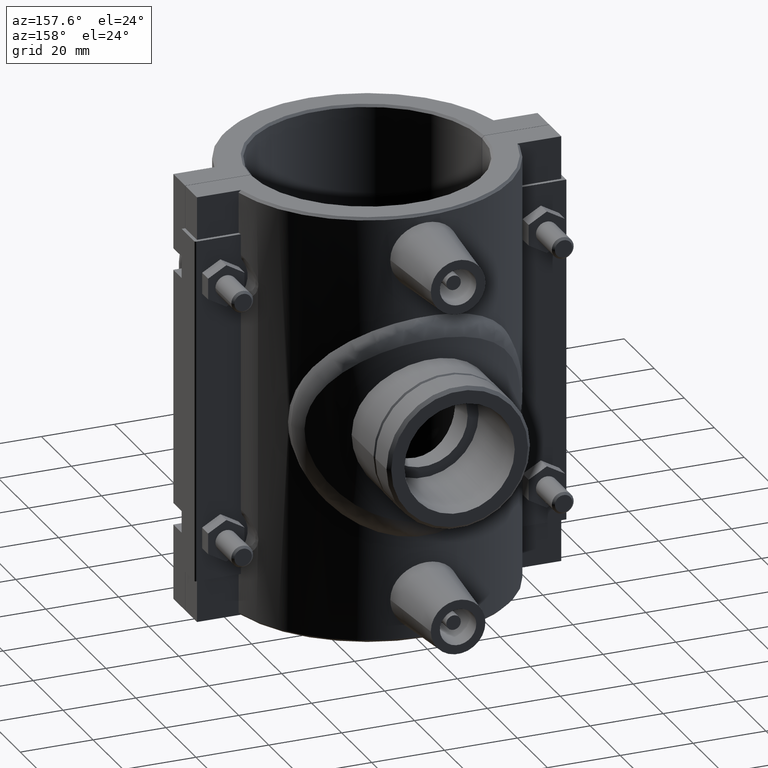
[diagram: clean part render]
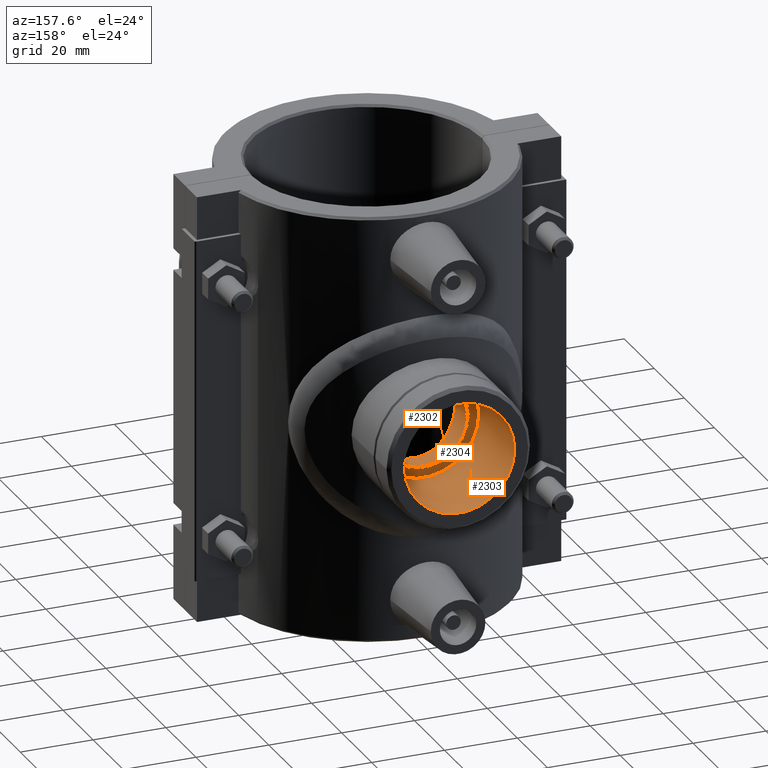
[diagram: same view with one multi-face feature highlighted, each face labeled with its STEP entity id]
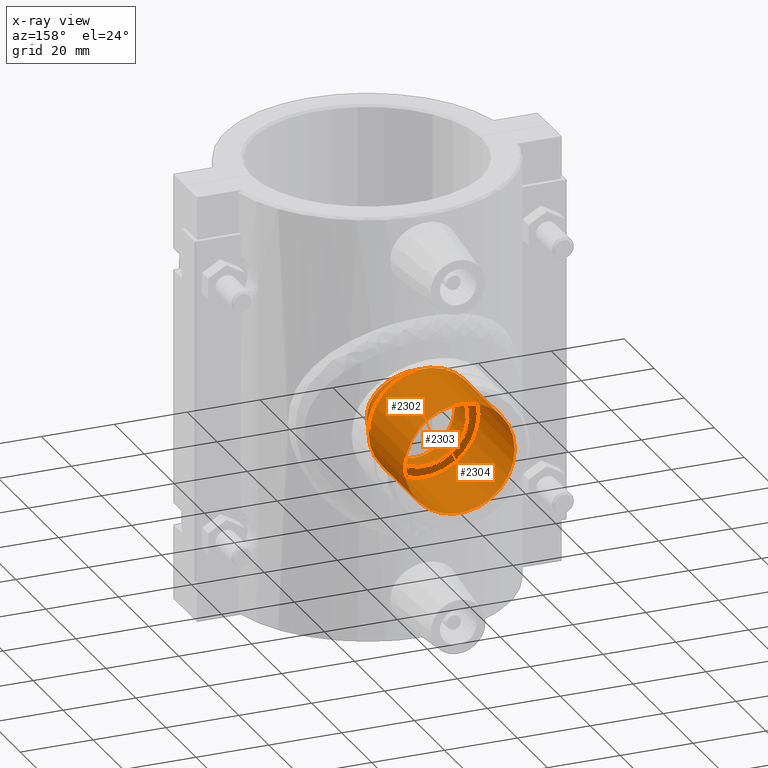
[diagram: x-ray of the same camera — body ghosted, the whole feature saturated]
A machine part, auxiliary view. The highlighted faces form ONE feature: a stepped (counterbored) hole: 2 coaxial cylindrical walls of radii 12.1164 -> 15.1455 mm joined by 1 annular planar shoulder face(s). The faces share edges in the B-rep.
The next image is the same camera in x-ray: the body ghosted and the whole hole feature saturated, so the bore chain is visible through the body.
Their STEP definitions:
[1] entity #2303 (Cylinder):
#78=CYLINDRICAL_SURFACE('',#2502,15.1455);
#128=FACE_BOUND('',#452,.T.);
#272=FACE_OUTER_BOUND('',#451,.T.);
#451=EDGE_LOOP('',(#1973));
#452=EDGE_LOOP('',(#1974));
#934=CIRCLE('',#2492,15.1455);
#939=CIRCLE('',#2503,15.1455);
#1139=VERTEX_POINT('',#4229);
#1145=VERTEX_POINT('',#4312);
#1431=EDGE_CURVE('',#1139,#1139,#934,.T.);
#1437=EDGE_CURVE('',#1145,#1145,#939,.T.);
#1973=ORIENTED_EDGE('',*,*,#1437,.T.);
#1974=ORIENTED_EDGE('',*,*,#1431,.F.);
#2303=ADVANCED_FACE('',(#272,#128),#78,.F.);
#2492=AXIS2_PLACEMENT_3D('',#4230,#3019,#3020);
#2502=AXIS2_PLACEMENT_3D('',#4311,#3039,#3040);
#2503=AXIS2_PLACEMENT_3D('',#4313,#3041,#3042);
#3019=DIRECTION('center_axis',(0.,-1.,0.));
#3020=DIRECTION('ref_axis',(-1.,0.,0.));
#3039=DIRECTION('center_axis',(0.,-1.,0.));
#3040=DIRECTION('ref_axis',(-1.,0.,0.));
#3041=DIRECTION('center_axis',(0.,-1.,0.));
#3042=DIRECTION('ref_axis',(-1.,0.,0.));
#4229=CARTESIAN_POINT('',(15.1455,61.5,-1.85478880964862E-15));
#4230=CARTESIAN_POINT('Origin',(0.,61.5,0.));
#4311=CARTESIAN_POINT('Origin',(0.,61.5,0.));
#4312=CARTESIAN_POINT('',(15.1455,37.5,-1.85478880964862E-15));
#4313=CARTESIAN_POINT('Origin',(0.,37.5,0.));
[2] entity #2302 (Cylinder):
#77=CYLINDRICAL_SURFACE('',#2500,12.1164);
#127=FACE_BOUND('',#450,.T.);
#160=B_SPLINE_CURVE_WITH_KNOTS('',3,(#4112,#4113,#4114,#4115,#4116,#4117,
#4118,#4119,#4120,#4121,#4122,#4123,#4124,#4125,#4126,#4127,#4128,#4129,
#4130,#4131,#4132,#4133,#4134,#4135,#4136,#4137,#4138,#4139,#4140,#4141,
#4142,#4143,#4144,#4145),.UNSPECIFIED.,.T.,.F.,(4,2,2,2,2,2,2,2,2,2,2,2,
2,2,2,2,4),(0.,0.461812339385587,0.923624678771175,1.38504255558034,1.84646043238952,
2.30787830919869,2.76929618600786,3.23110852539344,3.69292086477903,4.15473320416462,
4.6165455435502,5.07796342035937,5.53938129716854,6.00079917397771,6.46221705078688,
6.92402939017247,7.38584172955806),.UNSPECIFIED.);
#271=FACE_OUTER_BOUND('',#449,.T.);
#449=EDGE_LOOP('',(#1971));
#450=EDGE_LOOP('',(#1972));
#938=CIRCLE('',#2501,12.1164);
#1117=VERTEX_POINT('',#4111);
#1144=VERTEX_POINT('',#4309);
#1398=EDGE_CURVE('',#1117,#1117,#160,.T.);
#1436=EDGE_CURVE('',#1144,#1144,#938,.T.);
#1971=ORIENTED_EDGE('',*,*,#1398,.F.);
#1972=ORIENTED_EDGE('',*,*,#1436,.F.);
#2302=ADVANCED_FACE('',(#271,#127),#77,.F.);
#2500=AXIS2_PLACEMENT_3D('',#4308,#3035,#3036);
#2501=AXIS2_PLACEMENT_3D('',#4310,#3037,#3038);
#3035=DIRECTION('center_axis',(0.,-1.,0.));
#3036=DIRECTION('ref_axis',(-1.,0.,0.));
#3037=DIRECTION('center_axis',(0.,-1.,0.));
#3038=DIRECTION('ref_axis',(-1.,0.,0.));
#4111=CARTESIAN_POINT('',(12.1164,29.0764999791928,-5.55111512312578E-16));
#4112=CARTESIAN_POINT('Ctrl Pts',(12.1164,29.0764999791928,-5.55111512312578E-16));
#4113=CARTESIAN_POINT('Ctrl Pts',(12.1164,29.0764999791928,-1.53937446461862));
#4114=CARTESIAN_POINT('Ctrl Pts',(11.805490745385,29.2116587347318,-3.16892346047558));
#4115=CARTESIAN_POINT('Ctrl Pts',(10.5644395198064,29.6830457804531,-6.14852338780797));
#4116=CARTESIAN_POINT('Ctrl Pts',(9.63498183158772,30.0107892356078,-7.50019537554965));
#4117=CARTESIAN_POINT('Ctrl Pts',(7.50110710234183,30.6139124704304,-9.63407010479555));
#4118=CARTESIAN_POINT('Ctrl Pts',(6.1490854301121,30.9307279938343,-10.5642219245638));
#4119=CARTESIAN_POINT('Ctrl Pts',(3.16813916998257,31.376489290774,-11.805800909385));
#4120=CARTESIAN_POINT('Ctrl Pts',(1.5380595893639,31.5,-12.1164));
#4121=CARTESIAN_POINT('Ctrl Pts',(-1.5380595893639,31.5,-12.1164));
#4122=CARTESIAN_POINT('Ctrl Pts',(-3.16813916998257,31.376489290774,-11.805800909385));
#4123=CARTESIAN_POINT('Ctrl Pts',(-6.1490854301121,30.9307279938343,-10.5642219245638));
#4124=CARTESIAN_POINT('Ctrl Pts',(-7.50110710234183,30.6139124704304,-9.63407010479555));
#4125=CARTESIAN_POINT('Ctrl Pts',(-9.63498183158772,30.0107892356078,-7.50019537554965));
#4126=CARTESIAN_POINT('Ctrl Pts',(-10.5644395198064,29.6830457804531,-6.14852338780797));
#4127=CARTESIAN_POINT('Ctrl Pts',(-11.805490745385,29.2116587347318,-3.16892346047558));
#4128=CARTESIAN_POINT('Ctrl Pts',(-12.1164,29.0764999791928,-1.53937446461862));
#4129=CARTESIAN_POINT('Ctrl Pts',(-12.1164,29.0764999791928,1.53937446461862));
#4130=CARTESIAN_POINT('Ctrl Pts',(-11.805490745385,29.2116587347318,3.16892346047558));
#4131=CARTESIAN_POINT('Ctrl Pts',(-10.5644395198064,29.6830457804531,6.14852338780797));
#4132=CARTESIAN_POINT('Ctrl Pts',(-9.63498183158772,30.0107892356078,7.50019537554965));
#4133=CARTESIAN_POINT('Ctrl Pts',(-7.50110710234183,30.6139124704304,9.63407010479555));
#4134=CARTESIAN_POINT('Ctrl Pts',(-6.1490854301121,30.9307279938343,10.5642219245638));
#4135=CARTESIAN_POINT('Ctrl Pts',(-3.16813916998257,31.376489290774,11.805800909385));
#4136=CARTESIAN_POINT('Ctrl Pts',(-1.5380595893639,31.5,12.1164));
#4137=CARTESIAN_POINT('Ctrl Pts',(1.5380595893639,31.5,12.1164));
#4138=CARTESIAN_POINT('Ctrl Pts',(3.16813916998257,31.376489290774,11.805800909385));
#4139=CARTESIAN_POINT('Ctrl Pts',(6.14908543011209,30.9307279938343,10.5642219245638));
#4140=CARTESIAN_POINT('Ctrl Pts',(7.50110710234182,30.6139124704304,9.63407010479555));
#4141=CARTESIAN_POINT('Ctrl Pts',(9.63498183158772,30.0107892356078,7.50019537554965));
#4142=CARTESIAN_POINT('Ctrl Pts',(10.5644395198064,29.6830457804531,6.14852338780797));
#4143=CARTESIAN_POINT('Ctrl Pts',(11.805490745385,29.2116587347318,3.16892346047558));
#4144=CARTESIAN_POINT('Ctrl Pts',(12.1164,29.0764999791928,1.53937446461862));
#4145=CARTESIAN_POINT('Ctrl Pts',(12.1164,29.0764999791928,-2.77555756156289E-16));
#4308=CARTESIAN_POINT('Origin',(0.,37.5,0.));
#4309=CARTESIAN_POINT('',(12.1164,37.5,-1.4838310477189E-15));
#4310=CARTESIAN_POINT('Origin',(0.,37.5,0.));
[3] entity #2304 (Plane):
#129=FACE_BOUND('',#454,.T.);
#273=FACE_OUTER_BOUND('',#453,.T.);
#453=EDGE_LOOP('',(#1975));
#454=EDGE_LOOP('',(#1976));
#938=CIRCLE('',#2501,12.1164);
#939=CIRCLE('',#2503,15.1455);
#1144=VERTEX_POINT('',#4309);
#1145=VERTEX_POINT('',#4312);
#1436=EDGE_CURVE('',#1144,#1144,#938,.T.);
#1437=EDGE_CURVE('',#1145,#1145,#939,.T.);
#1975=ORIENTED_EDGE('',*,*,#1437,.F.);
#1976=ORIENTED_EDGE('',*,*,#1436,.T.);
#2179=PLANE('',#2504);
#2304=ADVANCED_FACE('',(#273,#129),#2179,.T.);
#2501=AXIS2_PLACEMENT_3D('',#4310,#3037,#3038);
#2503=AXIS2_PLACEMENT_3D('',#4313,#3041,#3042);
#2504=AXIS2_PLACEMENT_3D('',#4314,#3043,#3044);
#3037=DIRECTION('center_axis',(0.,-1.,0.));
#3038=DIRECTION('ref_axis',(-1.,0.,0.));
#3041=DIRECTION('center_axis',(0.,-1.,0.));
#3042=DIRECTION('ref_axis',(-1.,0.,0.));
#3043=DIRECTION('center_axis',(0.,1.,0.));
#3044=DIRECTION('ref_axis',(0.,0.,1.));
#4309=CARTESIAN_POINT('',(12.1164,37.5,-1.4838310477189E-15));
#4310=CARTESIAN_POINT('Origin',(0.,37.5,0.));
#4312=CARTESIAN_POINT('',(15.1455,37.5,-1.85478880964862E-15));
#4313=CARTESIAN_POINT('Origin',(0.,37.5,0.));
#4314=CARTESIAN_POINT('Origin',(-1.13195001736797E-15,37.5,0.));